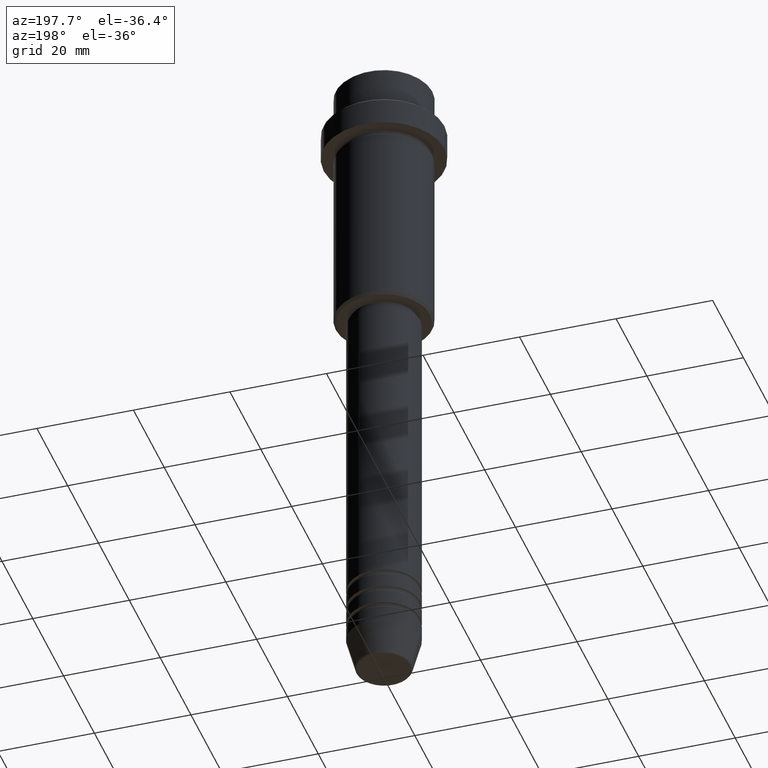
[diagram: clean part render]
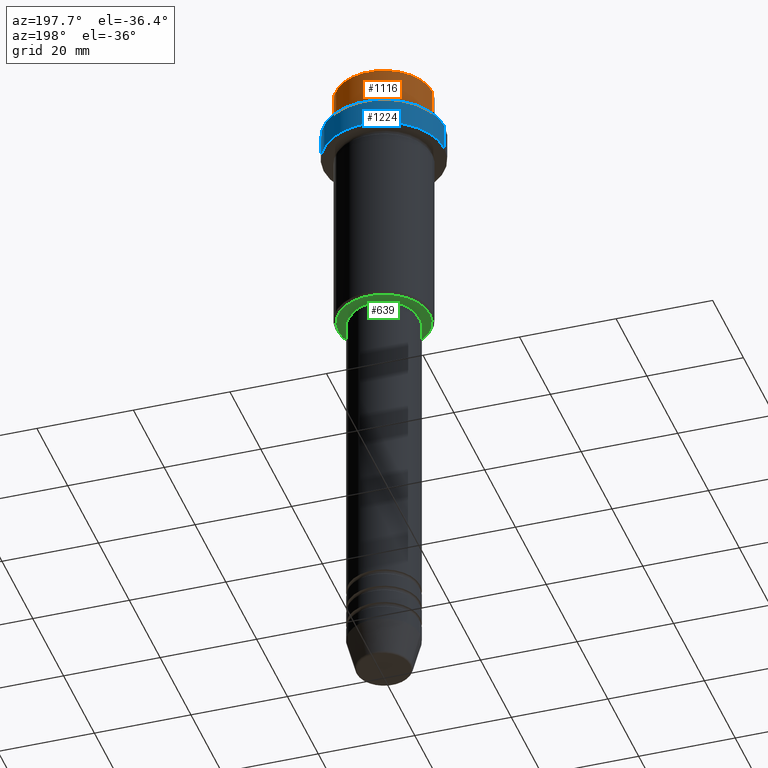
[diagram: same view with three faces highlighted in distinct colors, each labeled with its STEP entity id]
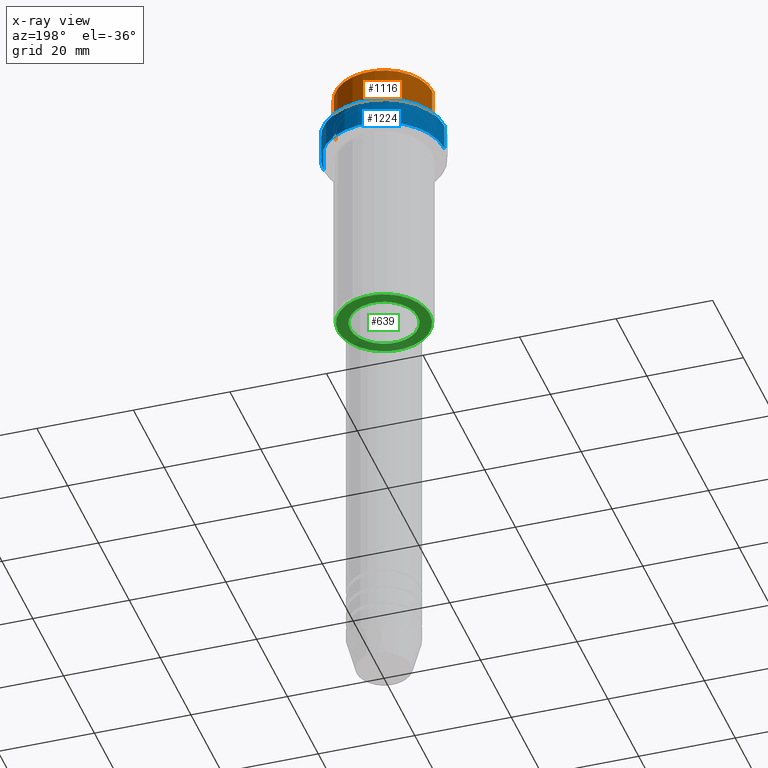
[diagram: x-ray of the same camera — body ghosted, the three highlighted faces saturated]
A machine part, auxiliary view with three faces highlighted in distinct colors.
The next image is the same camera in x-ray (body ghosted, the three faces saturated) — at least one of them is partly hidden behind the body in this view.
Their STEP definitions:

[orange] entity #1116 — the highlighted cylindrical surface (partial cylindrical patch) has radius 10 mm, axis along (-0, -0, 1).
#73 = AXIS2_PLACEMENT_3D ( 'NONE', #163, #720, #603 ) ;
#142 = DIRECTION ( 'NONE',  ( 1.000000000000000000, 0.000000000000000000, 0.000000000000000000 ) ) ;
#163 = CARTESIAN_POINT ( 'NONE',  ( 0.000000000000000000, 0.000000000000000000, -0.4999999999999970024 ) ) ;
#244 = CARTESIAN_POINT ( 'NONE',  ( 0.000000000000000000, 0.000000000000000000, 0.000000000000000000 ) ) ;
#293 = EDGE_CURVE ( 'NONE', #1117, #444, #1226, .T. ) ;
#331 = VERTEX_POINT ( 'NONE', #641 ) ;
#357 = AXIS2_PLACEMENT_3D ( 'NONE', #1039, #1262, #823 ) ;
#367 = ORIENTED_EDGE ( 'NONE', *, *, #885, .T. ) ;
#408 = LINE ( 'NONE', #963, #954 ) ;
#444 = VERTEX_POINT ( 'NONE', #1194 ) ;
#451 = CARTESIAN_POINT ( 'NONE',  ( 9.999999999999998224, 0.000000000000000000, -7.999999999999998224 ) ) ;
#466 = LINE ( 'NONE', #701, #893 ) ;
#552 = EDGE_LOOP ( 'NONE', ( #647, #367, #1169, #1021 ) ) ;
#582 = CARTESIAN_POINT ( 'NONE',  ( -9.999999999999998224, 1.224646799147353059E-15, -0.4999999999999970024 ) ) ;
#603 = DIRECTION ( 'NONE',  ( 1.000000000000000000, 0.000000000000000000, 0.000000000000000000 ) ) ;
#641 = CARTESIAN_POINT ( 'NONE',  ( -9.999999999999998224, 1.224646799147353059E-15, -7.999999999999998224 ) ) ;
#647 = ORIENTED_EDGE ( 'NONE', *, *, #689, .T. ) ;
#689 = EDGE_CURVE ( 'NONE', #983, #331, #1252, .T. ) ;
#696 = CYLINDRICAL_SURFACE ( 'NONE', #1207, 9.999999999999998224 ) ;
#701 = CARTESIAN_POINT ( 'NONE',  ( 9.999999999999998224, 0.000000000000000000, 0.000000000000000000 ) ) ;
#720 = DIRECTION ( 'NONE',  ( 0.000000000000000000, 0.000000000000000000, -1.000000000000000000 ) ) ;
#811 = FACE_OUTER_BOUND ( 'NONE', #552, .T. ) ;
#823 = DIRECTION ( 'NONE',  ( 1.000000000000000000, 0.000000000000000000, 0.000000000000000000 ) ) ;
#885 = EDGE_CURVE ( 'NONE', #331, #1117, #408, .T. ) ;
#893 = VECTOR ( 'NONE', #1232, 1000.000000000000000 ) ;
#954 = VECTOR ( 'NONE', #1177, 1000.000000000000000 ) ;
#963 = CARTESIAN_POINT ( 'NONE',  ( -9.999999999999998224, 1.224646799147353059E-15, 0.000000000000000000 ) ) ;
#983 = VERTEX_POINT ( 'NONE', #451 ) ;
#1021 = ORIENTED_EDGE ( 'NONE', *, *, #1037, .F. ) ;
#1037 = EDGE_CURVE ( 'NONE', #983, #444, #466, .T. ) ;
#1039 = CARTESIAN_POINT ( 'NONE',  ( 0.000000000000000000, 0.000000000000000000, -7.999999999999998224 ) ) ;
#1116 = ADVANCED_FACE ( 'NONE', ( #811 ), #696, .T. ) ;
#1117 = VERTEX_POINT ( 'NONE', #582 ) ;
#1124 = DIRECTION ( 'NONE',  ( -0.000000000000000000, -0.000000000000000000, 1.000000000000000000 ) ) ;
#1169 = ORIENTED_EDGE ( 'NONE', *, *, #293, .T. ) ;
#1177 = DIRECTION ( 'NONE',  ( -0.000000000000000000, -0.000000000000000000, 1.000000000000000000 ) ) ;
#1194 = CARTESIAN_POINT ( 'NONE',  ( 9.999999999999998224, 0.000000000000000000, -0.4999999999999970024 ) ) ;
#1207 = AXIS2_PLACEMENT_3D ( 'NONE', #244, #1124, #142 ) ;
#1226 = CIRCLE ( 'NONE', #73, 9.999999999999998224 ) ;
#1232 = DIRECTION ( 'NONE',  ( -0.000000000000000000, -0.000000000000000000, 1.000000000000000000 ) ) ;
#1252 = CIRCLE ( 'NONE', #357, 9.999999999999998224 ) ;
#1262 = DIRECTION ( 'NONE',  ( -0.000000000000000000, -0.000000000000000000, 1.000000000000000000 ) ) ;

[blue] entity #1224 — the highlighted cylindrical surface (partial cylindrical patch) has radius 12.5 mm, axis along (-0, -0, 1).
#17 = AXIS2_PLACEMENT_3D ( 'NONE', #1339, #591, #1247 ) ;
#18 = VECTOR ( 'NONE', #1389, 1000.000000000000000 ) ;
#74 = VERTEX_POINT ( 'NONE', #1013 ) ;
#89 = DIRECTION ( 'NONE',  ( -0.000000000000000000, -0.000000000000000000, 1.000000000000000000 ) ) ;
#135 = VECTOR ( 'NONE', #89, 1000.000000000000000 ) ;
#169 = DIRECTION ( 'NONE',  ( 1.000000000000000000, 0.000000000000000000, 0.000000000000000000 ) ) ;
#184 = EDGE_CURVE ( 'NONE', #718, #644, #1041, .T. ) ;
#388 = DIRECTION ( 'NONE',  ( -0.000000000000000000, -0.000000000000000000, 1.000000000000000000 ) ) ;
#437 = CARTESIAN_POINT ( 'NONE',  ( -12.50000000000000000, 1.530808498934191521E-15, 0.000000000000000000 ) ) ;
#546 = EDGE_LOOP ( 'NONE', ( #1281, #925, #1093, #957 ) ) ;
#591 = DIRECTION ( 'NONE',  ( 0.000000000000000000, 0.000000000000000000, -1.000000000000000000 ) ) ;
#610 = EDGE_CURVE ( 'NONE', #74, #1311, #747, .T. ) ;
#644 = VERTEX_POINT ( 'NONE', #1132 ) ;
#711 = AXIS2_PLACEMENT_3D ( 'NONE', #956, #388, #1036 ) ;
#718 = VERTEX_POINT ( 'NONE', #721 ) ;
#721 = CARTESIAN_POINT ( 'NONE',  ( 12.50000000000000000, 0.000000000000000000, -15.00000000000000000 ) ) ;
#747 = CIRCLE ( 'NONE', #17, 12.50000000000000000 ) ;
#820 = FACE_OUTER_BOUND ( 'NONE', #546, .T. ) ;
#834 = CARTESIAN_POINT ( 'NONE',  ( 12.50000000000000000, 0.000000000000000000, -9.500000000000031974 ) ) ;
#898 = EDGE_CURVE ( 'NONE', #718, #1311, #1075, .T. ) ;
#925 = ORIENTED_EDGE ( 'NONE', *, *, #949, .T. ) ;
#926 = AXIS2_PLACEMENT_3D ( 'NONE', #937, #1135, #169 ) ;
#937 = CARTESIAN_POINT ( 'NONE',  ( 0.000000000000000000, 0.000000000000000000, -15.00000000000000000 ) ) ;
#949 = EDGE_CURVE ( 'NONE', #644, #74, #1415, .T. ) ;
#956 = CARTESIAN_POINT ( 'NONE',  ( 0.000000000000000000, 0.000000000000000000, 0.000000000000000000 ) ) ;
#957 = ORIENTED_EDGE ( 'NONE', *, *, #898, .F. ) ;
#1013 = CARTESIAN_POINT ( 'NONE',  ( -12.50000000000000000, 1.530808498934191521E-15, -9.500000000000031974 ) ) ;
#1036 = DIRECTION ( 'NONE',  ( 1.000000000000000000, 0.000000000000000000, 0.000000000000000000 ) ) ;
#1041 = CIRCLE ( 'NONE', #926, 12.50000000000000000 ) ;
#1042 = CYLINDRICAL_SURFACE ( 'NONE', #711, 12.50000000000000000 ) ;
#1075 = LINE ( 'NONE', #1082, #135 ) ;
#1082 = CARTESIAN_POINT ( 'NONE',  ( 12.50000000000000000, 0.000000000000000000, 0.000000000000000000 ) ) ;
#1093 = ORIENTED_EDGE ( 'NONE', *, *, #610, .T. ) ;
#1132 = CARTESIAN_POINT ( 'NONE',  ( -12.50000000000000000, 1.530808498934191521E-15, -15.00000000000000000 ) ) ;
#1135 = DIRECTION ( 'NONE',  ( -0.000000000000000000, -0.000000000000000000, 1.000000000000000000 ) ) ;
#1224 = ADVANCED_FACE ( 'NONE', ( #820 ), #1042, .T. ) ;
#1247 = DIRECTION ( 'NONE',  ( 1.000000000000000000, 0.000000000000000000, 0.000000000000000000 ) ) ;
#1281 = ORIENTED_EDGE ( 'NONE', *, *, #184, .T. ) ;
#1311 = VERTEX_POINT ( 'NONE', #834 ) ;
#1339 = CARTESIAN_POINT ( 'NONE',  ( 0.000000000000000000, 0.000000000000000000, -9.500000000000031974 ) ) ;
#1389 = DIRECTION ( 'NONE',  ( -0.000000000000000000, -0.000000000000000000, 1.000000000000000000 ) ) ;
#1415 = LINE ( 'NONE', #437, #18 ) ;

[green] entity #639 — the highlighted planar face has unit normal (0, 0, -1).
#22 = ORIENTED_EDGE ( 'NONE', *, *, #472, .T. ) ;
#24 = CARTESIAN_POINT ( 'NONE',  ( 0.000000000000000000, 0.000000000000000000, -55.00000000000000711 ) ) ;
#35 = DIRECTION ( 'NONE',  ( 0.000000000000000000, 0.000000000000000000, -1.000000000000000000 ) ) ;
#76 = AXIS2_PLACEMENT_3D ( 'NONE', #1333, #35, #256 ) ;
#95 = VERTEX_POINT ( 'NONE', #988 ) ;
#211 = CARTESIAN_POINT ( 'NONE',  ( 9.500000000000008882, 0.000000000000000000, -55.00000000000000711 ) ) ;
#235 = ORIENTED_EDGE ( 'NONE', *, *, #531, .T. ) ;
#240 = DIRECTION ( 'NONE',  ( -0.000000000000000000, -0.000000000000000000, 1.000000000000000000 ) ) ;
#256 = DIRECTION ( 'NONE',  ( -1.000000000000000000, 0.000000000000000000, -0.000000000000000000 ) ) ;
#295 = EDGE_LOOP ( 'NONE', ( #235, #819 ) ) ;
#297 = CARTESIAN_POINT ( 'NONE',  ( 6.999999999999993783, 0.000000000000000000, -55.00000000000000711 ) ) ;
#309 = AXIS2_PLACEMENT_3D ( 'NONE', #791, #1225, #895 ) ;
#346 = AXIS2_PLACEMENT_3D ( 'NONE', #1091, #1313, #762 ) ;
#359 = PLANE ( 'NONE',  #76 ) ;
#415 = VERTEX_POINT ( 'NONE', #297 ) ;
#448 = VERTEX_POINT ( 'NONE', #211 ) ;
#472 = EDGE_CURVE ( 'NONE', #448, #1216, #1057, .T. ) ;
#531 = EDGE_CURVE ( 'NONE', #415, #95, #707, .T. ) ;
#580 = DIRECTION ( 'NONE',  ( 1.000000000000000000, 0.000000000000000000, 0.000000000000000000 ) ) ;
#584 = DIRECTION ( 'NONE',  ( -0.000000000000000000, -0.000000000000000000, 1.000000000000000000 ) ) ;
#601 = CARTESIAN_POINT ( 'NONE',  ( -9.500000000000008882, 1.194030629168669864E-15, -55.00000000000000711 ) ) ;
#639 = ADVANCED_FACE ( 'NONE', ( #1344, #1028 ), #359, .T. ) ;
#707 = CIRCLE ( 'NONE', #1024, 6.999999999999993783 ) ;
#762 = DIRECTION ( 'NONE',  ( -1.000000000000000000, 0.000000000000000000, 0.000000000000000000 ) ) ;
#791 = CARTESIAN_POINT ( 'NONE',  ( 0.000000000000000000, 0.000000000000000000, -55.00000000000000711 ) ) ;
#819 = ORIENTED_EDGE ( 'NONE', *, *, #972, .T. ) ;
#895 = DIRECTION ( 'NONE',  ( -1.000000000000000000, 0.000000000000000000, 0.000000000000000000 ) ) ;
#972 = EDGE_CURVE ( 'NONE', #95, #415, #1273, .T. ) ;
#988 = CARTESIAN_POINT ( 'NONE',  ( -6.999999999999993783, 8.572527594031465301E-16, -55.00000000000000711 ) ) ;
#992 = EDGE_CURVE ( 'NONE', #1216, #448, #1380, .T. ) ;
#1024 = AXIS2_PLACEMENT_3D ( 'NONE', #24, #584, #580 ) ;
#1028 = FACE_BOUND ( 'NONE', #295, .T. ) ;
#1057 = CIRCLE ( 'NONE', #346, 9.500000000000008882 ) ;
#1091 = CARTESIAN_POINT ( 'NONE',  ( 0.000000000000000000, 0.000000000000000000, -55.00000000000000711 ) ) ;
#1216 = VERTEX_POINT ( 'NONE', #601 ) ;
#1219 = CARTESIAN_POINT ( 'NONE',  ( 0.000000000000000000, 0.000000000000000000, -55.00000000000000711 ) ) ;
#1225 = DIRECTION ( 'NONE',  ( 0.000000000000000000, 0.000000000000000000, -1.000000000000000000 ) ) ;
#1273 = CIRCLE ( 'NONE', #1299, 6.999999999999993783 ) ;
#1278 = ORIENTED_EDGE ( 'NONE', *, *, #992, .T. ) ;
#1299 = AXIS2_PLACEMENT_3D ( 'NONE', #1219, #240, #1330 ) ;
#1313 = DIRECTION ( 'NONE',  ( 0.000000000000000000, 0.000000000000000000, -1.000000000000000000 ) ) ;
#1330 = DIRECTION ( 'NONE',  ( 1.000000000000000000, 0.000000000000000000, 0.000000000000000000 ) ) ;
#1333 = CARTESIAN_POINT ( 'NONE',  ( 0.000000000000000000, 10.00000000000000000, -55.00000000000000711 ) ) ;
#1344 = FACE_OUTER_BOUND ( 'NONE', #1387, .T. ) ;
#1380 = CIRCLE ( 'NONE', #309, 9.500000000000008882 ) ;
#1387 = EDGE_LOOP ( 'NONE', ( #22, #1278 ) ) ;